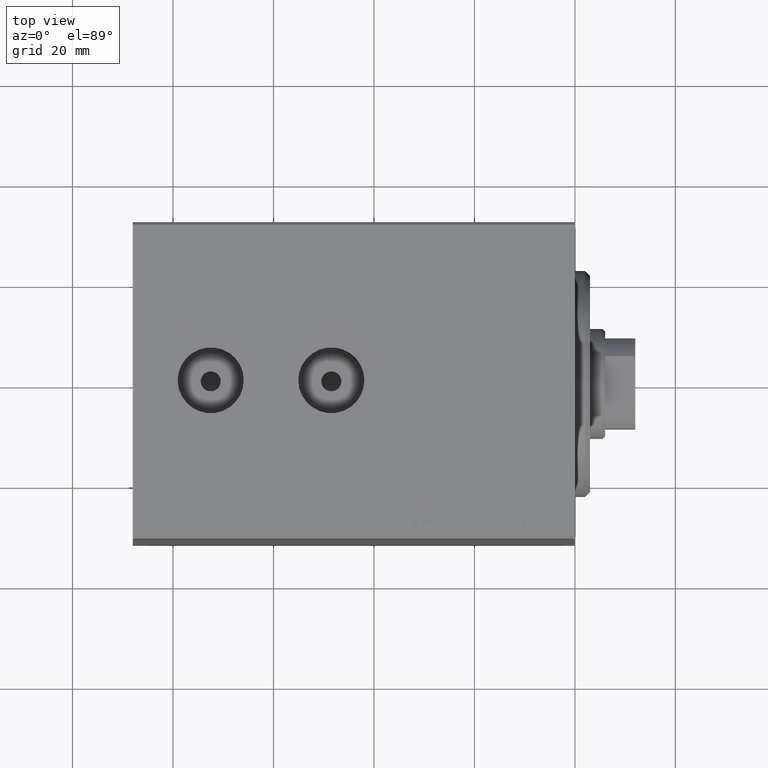
[diagram: clean part render]
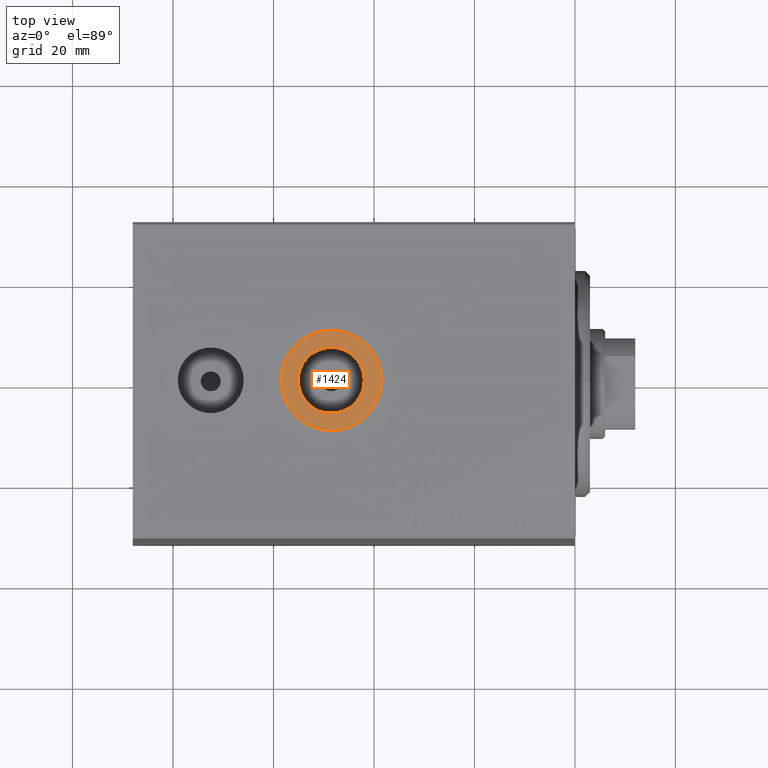
[diagram: same view with one face highlighted and labeled with its STEP entity id]
A machine part, top view. The second image highlights one B-rep face of the part: STEP entity #1424.
In plain terms, the highlighted planar face has unit normal (0, 0, 1).
Its self-contained STEP definition (entity closure, byte-faithful):
#560 = VERTEX_POINT ( 'NONE', #29663 ) ;
#1308 = CIRCLE ( 'NONE', #7779, 9.999999999999994671 ) ;
#1424 = ADVANCED_FACE ( 'NONE', ( #2800, #10238 ), #41130, .T. ) ;
#1926 = CIRCLE ( 'NONE', #26426, 9.999999999999994671 ) ;
#2800 = FACE_BOUND ( 'NONE', #4328, .T. ) ;
#3109 = CARTESIAN_POINT ( 'NONE',  ( 38.50000000000000711, -6.155997249021505163E-15, -42.40000000000000568 ) ) ;
#3835 = EDGE_CURVE ( 'NONE', #13775, #40860, #19867, .T. ) ;
#4328 = EDGE_LOOP ( 'NONE', ( #29604, #44124 ) ) ;
#6236 = AXIS2_PLACEMENT_3D ( 'NONE', #16776, #16104, #19925 ) ;
#7779 = AXIS2_PLACEMENT_3D ( 'NONE', #30277, #43580, #29826 ) ;
#8264 = DIRECTION ( 'NONE',  ( -1.000000000000000000, 0.000000000000000000, 0.000000000000000000 ) ) ;
#8486 = CIRCLE ( 'NONE', #15678, 6.580000000000002736 ) ;
#9510 = EDGE_CURVE ( 'NONE', #560, #39545, #1308, .T. ) ;
#9580 = ORIENTED_EDGE ( 'NONE', *, *, #36474, .T. ) ;
#9976 = CARTESIAN_POINT ( 'NONE',  ( 48.50000000000000000, -6.155997249021505163E-15, -42.40000000000000568 ) ) ;
#10238 = FACE_OUTER_BOUND ( 'NONE', #20156, .T. ) ;
#13775 = VERTEX_POINT ( 'NONE', #40375 ) ;
#14391 = CARTESIAN_POINT ( 'NONE',  ( 48.50000000000000000, -6.155997249021505163E-15, -42.40000000000000568 ) ) ;
#15425 = CARTESIAN_POINT ( 'NONE',  ( 48.50000000000000000, -6.155997249021505163E-15, -42.40000000000000568 ) ) ;
#15678 = AXIS2_PLACEMENT_3D ( 'NONE', #14391, #41665, #8264 ) ;
#16104 = DIRECTION ( 'NONE',  ( 0.000000000000000000, 0.000000000000000000, -1.000000000000000000 ) ) ;
#16776 = CARTESIAN_POINT ( 'NONE',  ( 0.000000000000000000, 0.000000000000000000, -42.40000000000000568 ) ) ;
#19867 = CIRCLE ( 'NONE', #42207, 6.580000000000002736 ) ;
#19925 = DIRECTION ( 'NONE',  ( -1.000000000000000000, 0.000000000000000000, -0.000000000000000000 ) ) ;
#20156 = EDGE_LOOP ( 'NONE', ( #9580, #30747 ) ) ;
#22129 = EDGE_CURVE ( 'NONE', #40860, #13775, #8486, .T. ) ;
#23728 = DIRECTION ( 'NONE',  ( 0.000000000000000000, 0.000000000000000000, -1.000000000000000000 ) ) ;
#26426 = AXIS2_PLACEMENT_3D ( 'NONE', #15425, #28518, #29170 ) ;
#28518 = DIRECTION ( 'NONE',  ( 0.000000000000000000, 0.000000000000000000, -1.000000000000000000 ) ) ;
#29170 = DIRECTION ( 'NONE',  ( -1.000000000000000000, 0.000000000000000000, 0.000000000000000000 ) ) ;
#29604 = ORIENTED_EDGE ( 'NONE', *, *, #22129, .F. ) ;
#29663 = CARTESIAN_POINT ( 'NONE',  ( 58.50000000000000000, -4.931350449874152892E-15, -42.40000000000000568 ) ) ;
#29826 = DIRECTION ( 'NONE',  ( -1.000000000000000000, 0.000000000000000000, 0.000000000000000000 ) ) ;
#30277 = CARTESIAN_POINT ( 'NONE',  ( 48.50000000000000000, -6.155997249021505163E-15, -42.40000000000000568 ) ) ;
#30747 = ORIENTED_EDGE ( 'NONE', *, *, #9510, .T. ) ;
#36474 = EDGE_CURVE ( 'NONE', #39545, #560, #1926, .T. ) ;
#37491 = DIRECTION ( 'NONE',  ( -1.000000000000000000, 0.000000000000000000, 0.000000000000000000 ) ) ;
#39545 = VERTEX_POINT ( 'NONE', #3109 ) ;
#40375 = CARTESIAN_POINT ( 'NONE',  ( 55.08000000000000540, -5.350179655182547698E-15, -42.40000000000000568 ) ) ;
#40860 = VERTEX_POINT ( 'NONE', #42109 ) ;
#41130 = PLANE ( 'NONE',  #6236 ) ;
#41665 = DIRECTION ( 'NONE',  ( 0.000000000000000000, 0.000000000000000000, -1.000000000000000000 ) ) ;
#42109 = CARTESIAN_POINT ( 'NONE',  ( 41.92000000000000171, -6.155997249021505163E-15, -42.40000000000000568 ) ) ;
#42207 = AXIS2_PLACEMENT_3D ( 'NONE', #9976, #23728, #37491 ) ;
#43580 = DIRECTION ( 'NONE',  ( 0.000000000000000000, 0.000000000000000000, -1.000000000000000000 ) ) ;
#44124 = ORIENTED_EDGE ( 'NONE', *, *, #3835, .F. ) ;